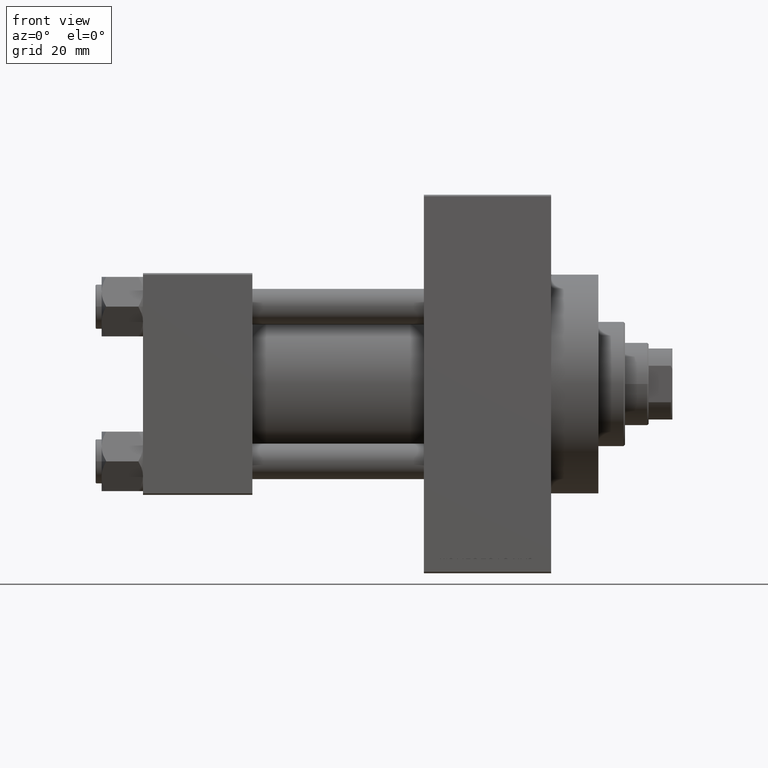
[diagram: clean part render]
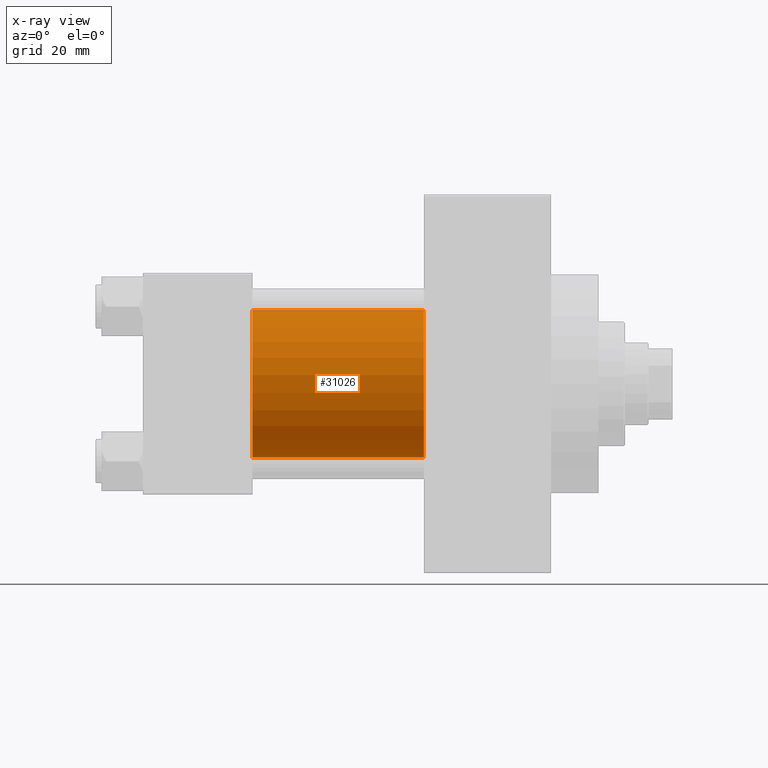
[diagram: x-ray — body ghosted, one internal face saturated and labeled with its STEP entity id]
A machine part, front view, then the same camera in x-ray: the body is ghosted and one INTERNAL B-rep face — a face not visible from any outside direction — is saturated and labeled: STEP entity #31026.
In plain terms, the highlighted cylindrical surface (partial cylindrical patch) has radius 25 mm, axis along (-1, -0, -0).
Its self-contained STEP definition (entity closure, byte-faithful):
#744 = CARTESIAN_POINT ( 'NONE',  ( 95.00000000000000000, -2.602085213965210642E-15, 25.00000000000000000 ) ) ;
#1103 = VERTEX_POINT ( 'NONE', #31601 ) ;
#3699 = VERTEX_POINT ( 'NONE', #23377 ) ;
#3965 = EDGE_CURVE ( 'NONE', #27921, #3699, #27541, .T. ) ;
#6387 = CYLINDRICAL_SURFACE ( 'NONE', #29164, 25.00000000000000000 ) ;
#6539 = LINE ( 'NONE', #33101, #8804 ) ;
#7207 = DIRECTION ( 'NONE',  ( -1.000000000000000000, -0.000000000000000000, -0.000000000000000000 ) ) ;
#8496 = AXIS2_PLACEMENT_3D ( 'NONE', #39187, #34973, #35451 ) ;
#8804 = VECTOR ( 'NONE', #10506, 1000.000000000000000 ) ;
#8893 = VERTEX_POINT ( 'NONE', #14039 ) ;
#10108 = FACE_OUTER_BOUND ( 'NONE', #31372, .T. ) ;
#10506 = DIRECTION ( 'NONE',  ( -1.000000000000000000, -0.000000000000000000, -0.000000000000000000 ) ) ;
#12433 = DIRECTION ( 'NONE',  ( -1.000000000000000000, -0.000000000000000000, -0.000000000000000000 ) ) ;
#13715 = VECTOR ( 'NONE', #7207, 1000.000000000000000 ) ;
#14039 = CARTESIAN_POINT ( 'NONE',  ( 37.00000000000000000, -2.602085213965210642E-15, 25.00000000000000000 ) ) ;
#14122 = ORIENTED_EDGE ( 'NONE', *, *, #42543, .F. ) ;
#16790 = EDGE_CURVE ( 'NONE', #3699, #1103, #6539, .T. ) ;
#17574 = ORIENTED_EDGE ( 'NONE', *, *, #3965, .T. ) ;
#20934 = CARTESIAN_POINT ( 'NONE',  ( 37.00000000000000000, -2.602085213965210642E-15, 0.000000000000000000 ) ) ;
#21127 = ORIENTED_EDGE ( 'NONE', *, *, #16790, .T. ) ;
#23377 = CARTESIAN_POINT ( 'NONE',  ( 95.00000000000000000, 4.595317839031718093E-16, -25.00000000000000000 ) ) ;
#24014 = AXIS2_PLACEMENT_3D ( 'NONE', #20934, #24896, #40778 ) ;
#24896 = DIRECTION ( 'NONE',  ( 1.000000000000000000, 0.000000000000000000, 0.000000000000000000 ) ) ;
#27541 = CIRCLE ( 'NONE', #8496, 25.00000000000000000 ) ;
#27921 = VERTEX_POINT ( 'NONE', #744 ) ;
#29164 = AXIS2_PLACEMENT_3D ( 'NONE', #48111, #12433, #46462 ) ;
#29564 = LINE ( 'NONE', #33276, #13715 ) ;
#31026 = ADVANCED_FACE ( 'NONE', ( #10108 ), #6387, .F. ) ;
#31372 = EDGE_LOOP ( 'NONE', ( #17574, #21127, #41136, #14122 ) ) ;
#31601 = CARTESIAN_POINT ( 'NONE',  ( 37.00000000000000000, 4.595317839031718093E-16, -25.00000000000000000 ) ) ;
#33101 = CARTESIAN_POINT ( 'NONE',  ( 95.00000000000000000, 4.595317839031718093E-16, -25.00000000000000000 ) ) ;
#33276 = CARTESIAN_POINT ( 'NONE',  ( 95.00000000000000000, -2.602085213965210642E-15, 25.00000000000000000 ) ) ;
#34973 = DIRECTION ( 'NONE',  ( 1.000000000000000000, 0.000000000000000000, 0.000000000000000000 ) ) ;
#35451 = DIRECTION ( 'NONE',  ( 0.000000000000000000, 0.000000000000000000, -1.000000000000000000 ) ) ;
#39187 = CARTESIAN_POINT ( 'NONE',  ( 95.00000000000000000, -2.602085213965210642E-15, 0.000000000000000000 ) ) ;
#40778 = DIRECTION ( 'NONE',  ( 0.000000000000000000, 0.000000000000000000, -1.000000000000000000 ) ) ;
#41136 = ORIENTED_EDGE ( 'NONE', *, *, #46647, .F. ) ;
#42543 = EDGE_CURVE ( 'NONE', #27921, #8893, #29564, .T. ) ;
#46462 = DIRECTION ( 'NONE',  ( 0.000000000000000000, 0.000000000000000000, 1.000000000000000000 ) ) ;
#46647 = EDGE_CURVE ( 'NONE', #8893, #1103, #47809, .T. ) ;
#47809 = CIRCLE ( 'NONE', #24014, 25.00000000000000000 ) ;
#48111 = CARTESIAN_POINT ( 'NONE',  ( 95.00000000000000000, -2.602085213965210642E-15, 0.000000000000000000 ) ) ;